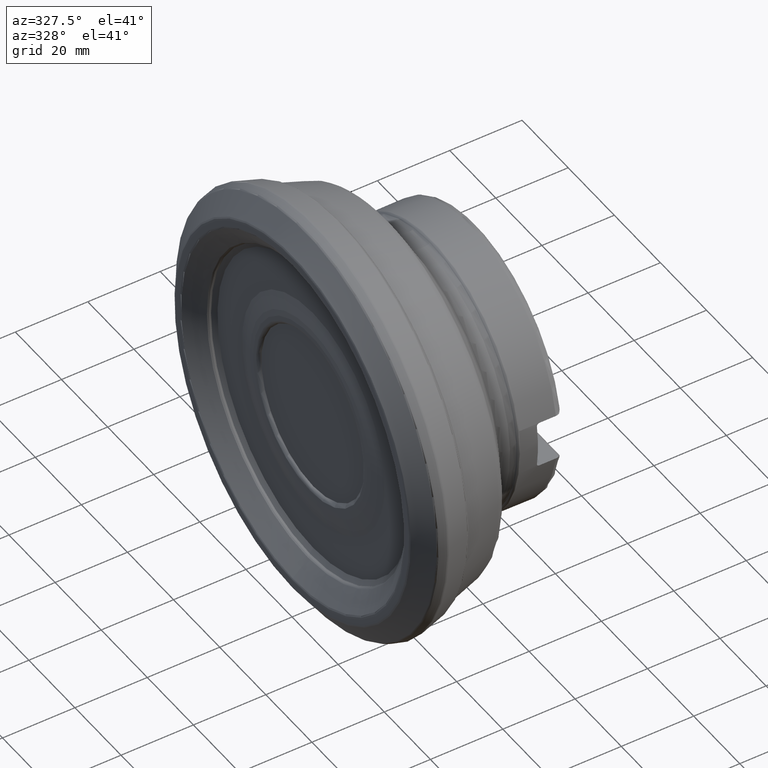
[diagram: clean part render]
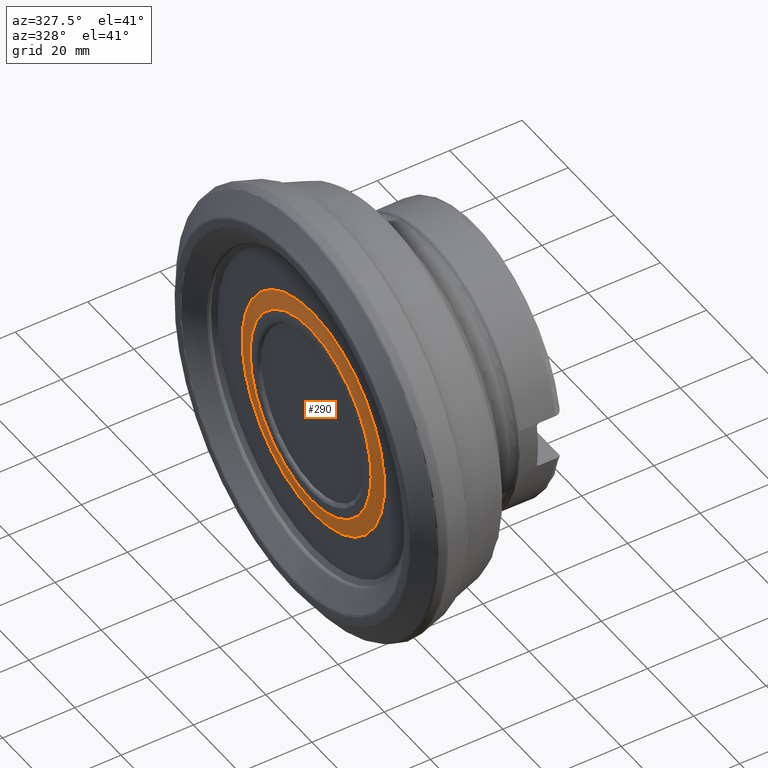
[diagram: same view with one face highlighted and labeled with its STEP entity id]
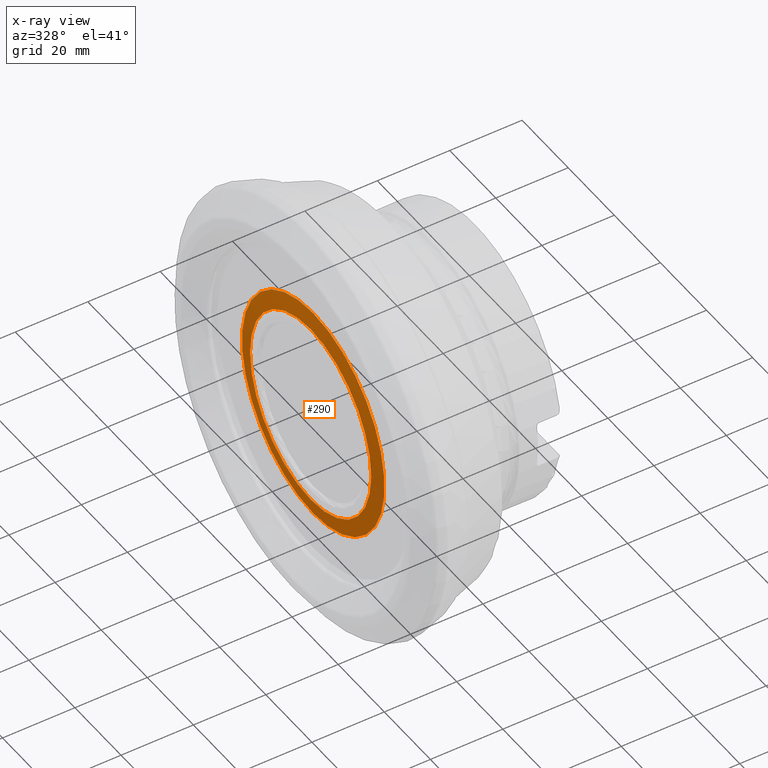
[diagram: x-ray of the same camera — body ghosted, the highlighted face saturated]
A machine part, auxiliary view. The second image highlights one B-rep face of the part: STEP entity #290.
The next image is the same camera in x-ray: the body ghosted, the highlighted face saturated — about 0% of this face is hidden behind the body in this view.
In plain terms, the highlighted conical surface has half-angle 81 deg.
Its self-contained STEP definition (entity closure, byte-faithful):
#133=CONICAL_SURFACE('',#1180,39.6289237875675,81.);
#290=ADVANCED_FACE('',(#467,#468),#133,.T.);
#467=FACE_BOUND('',#582,.T.);
#468=FACE_BOUND('',#583,.T.);
#582=EDGE_LOOP('',(#806));
#583=EDGE_LOOP('',(#807));
#806=ORIENTED_EDGE('',*,*,#1013,.T.);
#807=ORIENTED_EDGE('',*,*,#1012,.T.);
#900=VERTEX_POINT('',#2029);
#901=VERTEX_POINT('',#2033);
#1012=EDGE_CURVE('',#900,#900,#1072,.T.);
#1013=EDGE_CURVE('',#901,#901,#1073,.T.);
#1072=CIRCLE('',#1176,30.8800330729236);
#1073=CIRCLE('',#1179,26.2773275821561);
#1176=AXIS2_PLACEMENT_3D('',#2028,#1430,#1431);
#1179=AXIS2_PLACEMENT_3D('',#2032,#1436,#1437);
#1180=AXIS2_PLACEMENT_3D('',#2034,#1438,#1439);
#1430=DIRECTION('',(-1.,0.,0.));
#1431=DIRECTION('',(0.,0.,-1.));
#1436=DIRECTION('',(1.,0.,0.));
#1437=DIRECTION('',(0.,0.,1.));
#1438=DIRECTION('',(1.,0.,0.));
#1439=DIRECTION('',(-1.63823667678548E-17,0.,-1.));
#2028=CARTESIAN_POINT('',(5.8521135271825,0.,0.));
#2029=CARTESIAN_POINT('',(5.8521135271825,0.,-30.8800330729236));
#2032=CARTESIAN_POINT('',(5.12311659404863,0.,0.));
#2033=CARTESIAN_POINT('',(5.12311659404863,0.,26.2773275821561));
#2034=CARTESIAN_POINT('',(7.23780168648191,0.,0.));